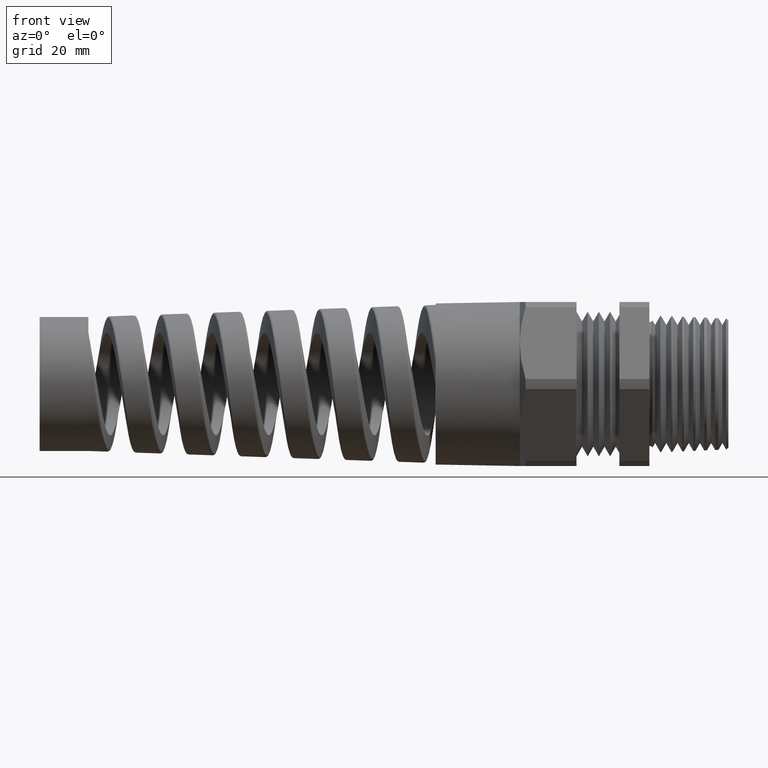
[diagram: clean part render]
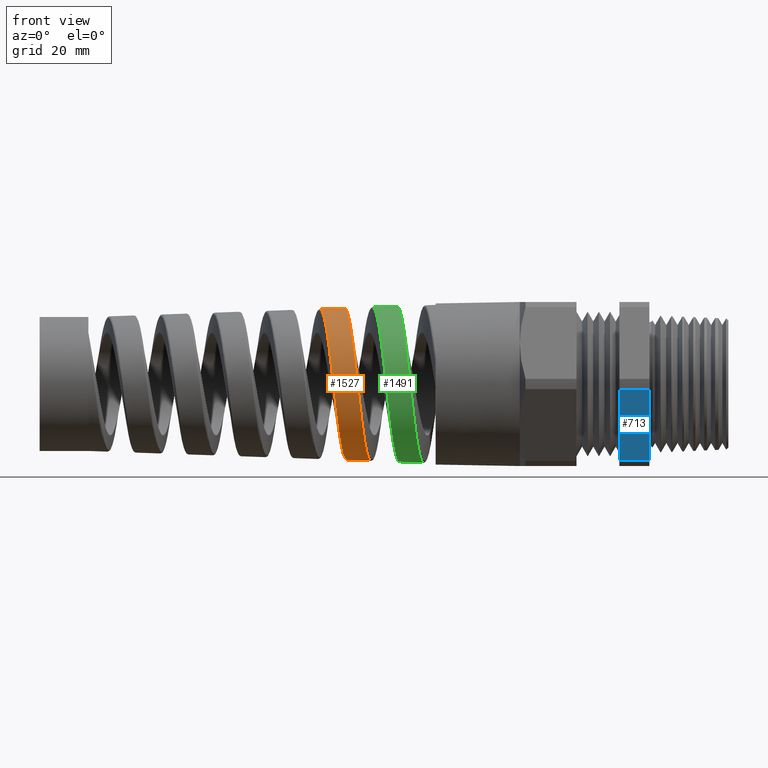
[diagram: same view with three faces highlighted in distinct colors, each labeled with its STEP entity id]
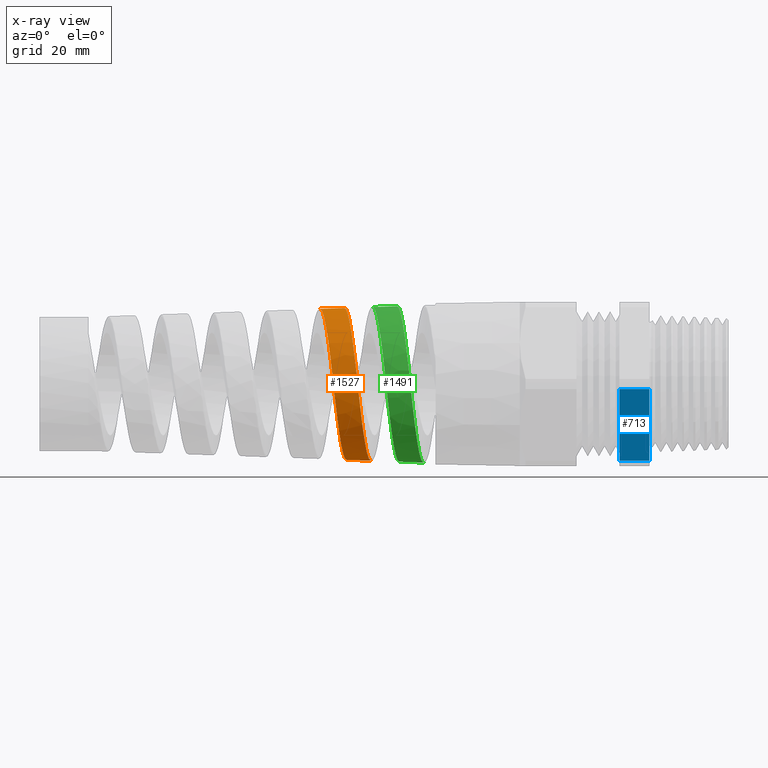
[diagram: x-ray of the same camera — body ghosted, the three highlighted faces saturated]
A machine part, front view with three faces highlighted in distinct colors.
The next image is the same camera in x-ray (body ghosted, the three faces saturated) — at least one of them is partly hidden behind the body in this view.
Their STEP definitions:

[orange] entity #1527 — the highlighted conical surface has half-angle 2.001 deg.
#1401 = VERTEX_POINT ( 'NONE', #11541 ) ;
#1403 = EDGE_CURVE ( 'NONE', #1401, #1404, #11540, .T. ) ;
#1404 = VERTEX_POINT ( 'NONE', #11536 ) ;
#1414 = VERTEX_POINT ( 'NONE', #11643 ) ;
#1452 = ORIENTED_EDGE ( 'NONE', *, *, #1403, .F. ) ;
#1485 = VERTEX_POINT ( 'NONE', #12276 ) ;
#1487 = EDGE_CURVE ( 'NONE', #1414, #1485, #12272, .T. ) ;
#1504 = ORIENTED_EDGE ( 'NONE', *, *, #1505, .T. ) ;
#1505 = EDGE_CURVE ( 'NONE', #1485, #1404, #12507, .T. ) ;
#1515 = ORIENTED_EDGE ( 'NONE', *, *, #1516, .T. ) ;
#1516 = EDGE_CURVE ( 'NONE', #1401, #1414, #12549, .T. ) ;
#1517 = ORIENTED_EDGE ( 'NONE', *, *, #1487, .T. ) ;
#1527 = ADVANCED_FACE ( 'NONE', ( #12734 ), #12728, .T. ) ;
#1528 = EDGE_LOOP ( 'NONE', ( #1452, #1515, #1517, #1504 ) ) ;
#11504 = CARTESIAN_POINT ( 'NONE',  ( -1.940054298517324400, -0.2610187680501633300, 0.4167585075105028600 ) ) ;
#11505 = CARTESIAN_POINT ( 'NONE',  ( -1.934723923338487400, -0.3012374277587881500, 0.3899189831598957600 ) ) ;
#11536 = CARTESIAN_POINT ( 'NONE',  ( -1.970366258008418700, 8.080882164397781500E-016, 0.4904273631850823400 ) ) ;
#11537 = DIRECTION ( 'NONE',  ( 0.9993904554178625300, 4.275258673359080400E-018, 0.03491013634572581700 ) ) ;
#11538 = VECTOR ( 'NONE', #11537, 39.37007874015748900 ) ;
#11539 = CARTESIAN_POINT ( 'NONE',  ( -0.8375000000000000200, 6.490628035480970000E-017, 0.5299999999999999200 ) ) ;
#11540 = LINE ( 'NONE', #11539, #11538 ) ;
#11541 = CARTESIAN_POINT ( 'NONE',  ( -2.126950025625508700, -3.921588020237294600E-013, 0.4849576684852720500 ) ) ;
#11643 = CARTESIAN_POINT ( 'NONE',  ( -1.956788165852292800, -5.262962614392048300E-013, -0.4909016653418775100 ) ) ;
#11781 = CARTESIAN_POINT ( 'NONE',  ( -1.945433043135629700, -0.2183509814821300000, 0.4404113744093495800 ) ) ;
#11783 = CARTESIAN_POINT ( 'NONE',  ( -1.941841036560495400, -0.2471005468463371200, 0.4250928787544007200 ) ) ;
#12099 = CARTESIAN_POINT ( 'NONE',  ( -1.947214422635189300, -0.2037130113122384800, 0.4472955279784776000 ) ) ;
#12100 = CARTESIAN_POINT ( 'NONE',  ( -1.956072637860206000, -0.1282473224093732300, 0.4749869207646405000 ) ) ;
#12101 = CARTESIAN_POINT ( 'NONE',  ( -1.952542110073305100, -0.1590381033086332200, 0.4656978719391909900 ) ) ;
#12269 = DIRECTION ( 'NONE',  ( 0.9993904554178625300, 0.0000000000000000000, -0.03491013634572581700 ) ) ;
#12270 = VECTOR ( 'NONE', #12269, 39.37007874015748900 ) ;
#12271 = CARTESIAN_POINT ( 'NONE',  ( -0.8375000000000000200, 0.0000000000000000000, -0.5299999999999999200 ) ) ;
#12272 = LINE ( 'NONE', #12271, #12270 ) ;
#12276 = CARTESIAN_POINT ( 'NONE',  ( -1.800173675453590900, 6.137882019710237000E-013, -0.4963724332323403200 ) ) ;
#12468 = CARTESIAN_POINT ( 'NONE',  ( -1.931200679576893200, -0.3261104193664271500, 0.3695442091682354900 ) ) ;
#12469 = CARTESIAN_POINT ( 'NONE',  ( -1.925853496053912700, -0.3604655451319386300, 0.3352210730112128400 ) ) ;
#12470 = CARTESIAN_POINT ( 'NONE',  ( -1.924053208243475100, -0.3714589966061807000, 0.3230922515468117600 ) ) ;
#12471 = CARTESIAN_POINT ( 'NONE',  ( -1.920488813662305100, -0.3919852260485274800, 0.2980612616859317800 ) ) ;
#12472 = CARTESIAN_POINT ( 'NONE',  ( -1.918716970074207700, -0.4015724787654469400, 0.2851137399971464000 ) ) ;
#12473 = CARTESIAN_POINT ( 'NONE',  ( -1.913409351693949200, -0.4283470321128043400, 0.2450038610062303700 ) ) ;
#12474 = CARTESIAN_POINT ( 'NONE',  ( -1.909875883052076800, -0.4435903396731858400, 0.2165285349090029200 ) ) ;
#12475 = CARTESIAN_POINT ( 'NONE',  ( -1.902712808441038100, -0.4684729604013435600, 0.1563221905293880300 ) ) ;
#12476 = CARTESIAN_POINT ( 'NONE',  ( -1.899187183762067500, -0.4777584589739025700, 0.1254794506144623100 ) ) ;
#12477 = CARTESIAN_POINT ( 'NONE',  ( -1.893887077975340500, -0.4871307740112840200, 0.07815812640470550000 ) ) ;
#12478 = CARTESIAN_POINT ( 'NONE',  ( -1.892118438561205800, -0.4894900148319970000, 0.06220686079470632400 ) ) ;
#12479 = CARTESIAN_POINT ( 'NONE',  ( -1.888558796980645200, -0.4926421087399239800, 0.02994292609547794700 ) ) ;
#12480 = CARTESIAN_POINT ( 'NONE',  ( -1.886764590473166000, -0.4934250982414232200, 0.01360086239810189500 ) ) ;
#12481 = CARTESIAN_POINT ( 'NONE',  ( -1.881439020610531400, -0.4933588805048748600, -0.03490017396999185700 ) ) ;
#12482 = CARTESIAN_POINT ( 'NONE',  ( -1.877925708963811900, -0.4901667864271757000, -0.06688825815702130500 ) ) ;
#12483 = CARTESIAN_POINT ( 'NONE',  ( -1.872617532382718800, -0.4806924271754249900, -0.1143450357671499500 ) ) ;
#12484 = CARTESIAN_POINT ( 'NONE',  ( -1.870834285321333100, -0.4767283659144366800, -0.1301377758347455900 ) ) ;
#12485 = CARTESIAN_POINT ( 'NONE',  ( -1.867268016615492900, -0.4672543620355411600, -0.1612520025533861800 ) ) ;
#12486 = CARTESIAN_POINT ( 'NONE',  ( -1.865498338997512400, -0.4617868659829511600, -0.1764580930467768400 ) ) ;
#12487 = CARTESIAN_POINT ( 'NONE',  ( -1.860203312988075100, -0.4432609539110020100, -0.2210529290605159100 ) ) ;
#12488 = CARTESIAN_POINT ( 'NONE',  ( -1.856693290412234900, -0.4280987754263969600, -0.2494278925930632200 ) ) ;
#12489 = CARTESIAN_POINT ( 'NONE',  ( -1.851361710774907900, -0.4010424532535899500, -0.2898999392763021400 ) ) ;
#12490 = CARTESIAN_POINT ( 'NONE',  ( -1.849574605628612600, -0.3912997723980710100, -0.3030195600465659900 ) ) ;
#12491 = CARTESIAN_POINT ( 'NONE',  ( -1.846037230146012200, -0.3707917274295744500, -0.3279818873375984800 ) ) ;
#12492 = CARTESIAN_POINT ( 'NONE',  ( -1.842516972819853800, -0.3491644079285869400, -0.3518199597440300200 ) ) ;
#12493 = CARTESIAN_POINT ( 'NONE',  ( -1.838998051377101400, -0.3253353841857014600, -0.3734414838601858300 ) ) ;
#12494 = CARTESIAN_POINT ( 'NONE',  ( -1.835465255661320700, -0.3003924756919560400, -0.3939393422871889600 ) ) ;
#12495 = CARTESIAN_POINT ( 'NONE',  ( -1.833682800327464800, -0.2872947871709060600, -0.4036712781793303000 ) ) ;
#12496 = CARTESIAN_POINT ( 'NONE',  ( -1.828353894754960000, -0.2467897723313266500, -0.4307662769087330400 ) ) ;
#12497 = CARTESIAN_POINT ( 'NONE',  ( -1.824851823162927400, -0.2184098489689820200, -0.4459409094174426300 ) ) ;
#12498 = CARTESIAN_POINT ( 'NONE',  ( -1.819573965572466100, -0.1738440689669233900, -0.4644894301305174100 ) ) ;
#12499 = CARTESIAN_POINT ( 'NONE',  ( -1.817811041559818300, -0.1586537522106682100, -0.4699650822437751500 ) ) ;
#12500 = CARTESIAN_POINT ( 'NONE',  ( -1.814262022284431000, -0.1275855792300714400, -0.4794612049791495100 ) ) ;
#12501 = CARTESIAN_POINT ( 'NONE',  ( -1.812482194494238900, -0.1117633914918472200, -0.4834547357609675900 ) ) ;
#12502 = CARTESIAN_POINT ( 'NONE',  ( -1.807194066610746000, -0.06428481680161855800, -0.4930030836152519100 ) ) ;
#12503 = CARTESIAN_POINT ( 'NONE',  ( -1.803700274733210500, -0.03230350512032042300, -0.4962492440814123000 ) ) ;
#12504 = CARTESIAN_POINT ( 'NONE',  ( -1.800173675453590900, 6.137882019710237000E-013, -0.4963724332323403200 ) ) ;
#12507 = B_SPLINE_CURVE_WITH_KNOTS ( 'NONE', 3,
 ( #12504, #12503, #12502, #12501, #12500, #12499, #12498, #12497, #12496, #12495, #12494, #12493, #12492, #12491, #12490, #12489, #12488, #12487, #12486, #12485, #12484, #12483, #12482, #12481, #12480, #12479, #12478, #12477, #12476, #12475, #12474, #12473, #12472, #12471, #12470, #12469, #12468, #11505, #11504, #11783, #11781, #12099, #12101, #12100, #12547, #12546, #12545, #12544, #12543 ),
 .UNSPECIFIED., .F., .F.,
 ( 4, 2, 2, 2, 2, 2, 1, 2, 2, 2, 2, 2, 2, 2, 2, 2, 2, 2, 2, 2, 2, 2, 2, 2, 4 ),
 ( 0.09989892382286455500, 0.1023843115514495000, 0.1036270054157419900, 0.1048696992800344600, 0.1073550870086194100, 0.1085977808729118900, 0.1098404747372043700, 0.1110831686014968500, 0.1123258624657893200, 0.1148112501943742800, 0.1160539440586667700, 0.1172966379229592600, 0.1197820256515442200, 0.1210247195158367100, 0.1222674133801292000, 0.1247528011087141600, 0.1272381888372991200, 0.1284808827015916100, 0.1297235765658841000, 0.1322089642944690700, 0.1334516581587615300, 0.1346943520230540200, 0.1371797397516390000, 0.1384224336159314800, 0.1396651274802239700 ),
 .UNSPECIFIED. ) ;
#12543 = CARTESIAN_POINT ( 'NONE',  ( -1.970366258008418700, 8.080882164397781500E-016, 0.4904273631850823400 ) ) ;
#12544 = CARTESIAN_POINT ( 'NONE',  ( -1.968591402298518500, -0.01607210514269810000, 0.4904893614306035700 ) ) ;
#12545 = CARTESIAN_POINT ( 'NONE',  ( -1.966815999828056800, -0.03215494722281127300, 0.4897632300345537400 ) ) ;
#12546 = CARTESIAN_POINT ( 'NONE',  ( -1.963246142005282700, -0.06434047833252107300, 0.4867079455546231000 ) ) ;
#12547 = CARTESIAN_POINT ( 'NONE',  ( -1.961441802277589500, -0.08053050806948074100, 0.4843577705735628800 ) ) ;
#12548 = CARTESIAN_POINT ( 'NONE',  ( -2.126950025625508700, -3.921588020237294600E-013, 0.4849576684852720500 ) ) ;
#12549 = B_SPLINE_CURVE_WITH_KNOTS ( 'NONE', 3,
 ( #12548, #12630, #12629, #12628, #12627, #12626, #12625, #12624, #12623, #12622, #12621, #12620, #12619, #12618, #12617, #12616, #12615, #12614, #12613, #12612, #12611, #12610, #12609, #12608, #12607, #12606, #12605, #12604, #12603, #12602, #12601, #12600, #12599, #12598, #12597, #12596, #12595, #12594, #12593, #12592, #12591, #12590, #12589, #12588, #12587, #12586, #12585, #12584, #12583, #12582, #12581 ),
 .UNSPECIFIED., .F., .F.,
 ( 4, 2, 1, 2, 2, 2, 2, 2, 2, 2, 2, 2, 2, 2, 2, 2, 2, 2, 2, 2, 2, 2, 2, 2, 2, 4 ),
 ( 0.3275861178558636700, 0.3288224891401667100, 0.3300588604244697500, 0.3312952317087727900, 0.3325316029930758300, 0.3350043455616819000, 0.3362407168459848900, 0.3374770881302879300, 0.3399498306988940100, 0.3411862019831970500, 0.3424225732675000900, 0.3448953158361061100, 0.3473680584047121900, 0.3486044296890151700, 0.3498408009733182100, 0.3523135435419242900, 0.3535499148262273300, 0.3547862861105303700, 0.3572590286791363900, 0.3584953999634394300, 0.3597317712477424700, 0.3609681425320455100, 0.3622045138163485500, 0.3646772563849545700, 0.3659136276692576100, 0.3671499989535606500 ),
 .UNSPECIFIED. ) ;
#12581 = CARTESIAN_POINT ( 'NONE',  ( -1.956788165852292800, -5.262962614392048300E-013, -0.4909016653418775100 ) ) ;
#12582 = CARTESIAN_POINT ( 'NONE',  ( -1.958549970791704700, -0.01597200320892930300, -0.4908401229783968500 ) ) ;
#12583 = CARTESIAN_POINT ( 'NONE',  ( -1.960330640259503800, -0.03210824303978018100, -0.4899891731778656700 ) ) ;
#12584 = CARTESIAN_POINT ( 'NONE',  ( -1.963872095786387800, -0.06402676025809769800, -0.4867232190556208800 ) ) ;
#12585 = CARTESIAN_POINT ( 'NONE',  ( -1.965631649058064500, -0.07979826607313203500, -0.4843205483670413000 ) ) ;
#12586 = CARTESIAN_POINT ( 'NONE',  ( -1.970901299676484300, -0.1265612665467569000, -0.4748626699852278000 ) ) ;
#12587 = CARTESIAN_POINT ( 'NONE',  ( -1.974399691985377500, -0.1570067553935506300, -0.4655787821038359600 ) ) ;
#12588 = CARTESIAN_POINT ( 'NONE',  ( -1.979728100323954600, -0.2015320063742346000, -0.4470365417443147900 ) ) ;
#12589 = CARTESIAN_POINT ( 'NONE',  ( -1.981505282616581300, -0.2160713906142163200, -0.4401193471711388200 ) ) ;
#12590 = CARTESIAN_POINT ( 'NONE',  ( -1.985031932804784500, -0.2441755374637757400, -0.4250287886003122400 ) ) ;
#12591 = CARTESIAN_POINT ( 'NONE',  ( -1.986788601180111900, -0.2578009156581732600, -0.4168307226002725400 ) ) ;
#12592 = CARTESIAN_POINT ( 'NONE',  ( -1.990304130164506100, -0.2842059600157567600, -0.3991438842310947000 ) ) ;
#12593 = CARTESIAN_POINT ( 'NONE',  ( -1.992062597996201400, -0.2969856817485153600, -0.3896551170492311100 ) ) ;
#12594 = CARTESIAN_POINT ( 'NONE',  ( -1.995597790085105600, -0.3216830965315139500, -0.3693652232811428500 ) ) ;
#12595 = CARTESIAN_POINT ( 'NONE',  ( -1.997384489215503000, -0.3336610457239669300, -0.3584988394057610500 ) ) ;
#12596 = CARTESIAN_POINT ( 'NONE',  ( -2.002705450344995700, -0.3676396835543386800, -0.3244704372248286600 ) ) ;
#12597 = CARTESIAN_POINT ( 'NONE',  ( -2.006210668027887500, -0.3877927868443491500, -0.2998716718794926500 ) ) ;
#12598 = CARTESIAN_POINT ( 'NONE',  ( -2.011501260278832700, -0.4143400914414440100, -0.2601680481853070300 ) ) ;
#12599 = CARTESIAN_POINT ( 'NONE',  ( -2.013269663306649800, -0.4225712473619820400, -0.2464626245114767100 ) ) ;
#12600 = CARTESIAN_POINT ( 'NONE',  ( -2.016835031948170700, -0.4377551245851459300, -0.2180801804087756100 ) ) ;
#12601 = CARTESIAN_POINT ( 'NONE',  ( -2.018612425540876800, -0.4446201324569933300, -0.2035579137616691000 ) ) ;
#12602 = CARTESIAN_POINT ( 'NONE',  ( -2.023912360765570900, -0.4629278212946190100, -0.1593802235089219800 ) ) ;
#12603 = CARTESIAN_POINT ( 'NONE',  ( -2.027421933446924600, -0.4721839018528426500, -0.1289719749676264400 ) ) ;
#12604 = CARTESIAN_POINT ( 'NONE',  ( -2.032744199961714000, -0.4815927678926397200, -0.08191915052385527500 ) ) ;
#12605 = CARTESIAN_POINT ( 'NONE',  ( -2.034536783194426300, -0.4839805469581845400, -0.06591373762534968900 ) ) ;
#12606 = CARTESIAN_POINT ( 'NONE',  ( -2.038089600107122500, -0.4871362242101702200, -0.03404309825426296600 ) ) ;
#12607 = CARTESIAN_POINT ( 'NONE',  ( -2.039855680528875700, -0.4879221804152137900, -0.01812746240460144300 ) ) ;
#12608 = CARTESIAN_POINT ( 'NONE',  ( -2.045149340681850600, -0.4879554035894949100, 0.02955878929029001300 ) ) ;
#12609 = CARTESIAN_POINT ( 'NONE',  ( -2.048671955086366100, -0.4849006174848128900, 0.06126938661619026100 ) ) ;
#12610 = CARTESIAN_POINT ( 'NONE',  ( -2.055832467752174000, -0.4723729331067531600, 0.1245088405540348400 ) ) ;
#12611 = CARTESIAN_POINT ( 'NONE',  ( -2.059354794702788400, -0.4631059904973919300, 0.1549939484450593400 ) ) ;
#12612 = CARTESIAN_POINT ( 'NONE',  ( -2.064657039043402700, -0.4448887606323893600, 0.1990623929924104400 ) ) ;
#12613 = CARTESIAN_POINT ( 'NONE',  ( -2.066427415518522700, -0.4380914416898794000, 0.2134741935416147300 ) ) ;
#12614 = CARTESIAN_POINT ( 'NONE',  ( -2.069989966308237500, -0.4230148746385710700, 0.2417282495275143200 ) ) ;
#12615 = CARTESIAN_POINT ( 'NONE',  ( -2.071787690230090500, -0.4146992365588065300, 0.2556109408640563400 ) ) ;
#12616 = CARTESIAN_POINT ( 'NONE',  ( -2.077125031798937400, -0.3880386385933733400, 0.2955070086039533500 ) ) ;
#12617 = CARTESIAN_POINT ( 'NONE',  ( -2.080644878502583100, -0.3678667675306717700, 0.3200716736662613800 ) ) ;
#12618 = CARTESIAN_POINT ( 'NONE',  ( -2.085971031547044800, -0.3340525061643930800, 0.3538889815563738300 ) ) ;
#12619 = CARTESIAN_POINT ( 'NONE',  ( -2.087759190266214900, -0.3221477893696598200, 0.3646825169102292400 ) ) ;
#12620 = CARTESIAN_POINT ( 'NONE',  ( -2.091344031355276900, -0.2972577171819559800, 0.3850825916892136600 ) ) ;
#12621 = CARTESIAN_POINT ( 'NONE',  ( -2.093122110168117900, -0.2844054473061680100, 0.3945863425157292200 ) ) ;
#12622 = CARTESIAN_POINT ( 'NONE',  ( -2.098442076040774000, -0.2446677883695380600, 0.4210725038547201100 ) ) ;
#12623 = CARTESIAN_POINT ( 'NONE',  ( -2.101969849049802900, -0.2166126186123205100, 0.4360488002205149000 ) ) ;
#12624 = CARTESIAN_POINT ( 'NONE',  ( -2.107336092835759600, -0.1721410762171766700, 0.4543935791814077100 ) ) ;
#12625 = CARTESIAN_POINT ( 'NONE',  ( -2.109137396840409500, -0.1569091584957527400, 0.4598070599210675700 ) ) ;
#12626 = CARTESIAN_POINT ( 'NONE',  ( -2.112701141728703400, -0.1263128413939811300, 0.4690066113531106100 ) ) ;
#12627 = CARTESIAN_POINT ( 'NONE',  ( -2.116246771620323500, -0.09541879083074053500, 0.4766531090879574900 ) ) ;
#12628 = CARTESIAN_POINT ( 'NONE',  ( -2.119792727041759600, -0.06394240842949261400, 0.4812405755579579100 ) ) ;
#12629 = CARTESIAN_POINT ( 'NONE',  ( -2.123356215426745600, -0.03217294771435202900, 0.4842780657612144600 ) ) ;
#12630 = CARTESIAN_POINT ( 'NONE',  ( -2.125155777842725700, -0.01606057734700762400, 0.4850203441235900200 ) ) ;
#12723 = DIRECTION ( 'NONE',  ( 0.0000000000000000000, 0.0000000000000000000, -1.000000000000000000 ) ) ;
#12724 = DIRECTION ( 'NONE',  ( 1.000000000000000000, 0.0000000000000000000, 0.0000000000000000000 ) ) ;
#12725 = CARTESIAN_POINT ( 'NONE',  ( -0.8375000000000000200, 0.0000000000000000000, 0.0000000000000000000 ) ) ;
#12726 = AXIS2_PLACEMENT_3D ( 'NONE', #12725, #12724, #12723 ) ;
#12728 = CONICAL_SURFACE ( 'NONE', #12726, 0.5299999999999999200, 0.03491723117042447300 ) ;
#12734 = FACE_OUTER_BOUND ( 'NONE', #1528, .T. ) ;

[blue] entity #713 — the highlighted planar face has unit normal (0, -0.866, -0.5).
#226 = VERTEX_POINT ( 'NONE', #1826 ) ;
#250 = ORIENTED_EDGE ( 'NONE', *, *, #481, .T. ) ;
#252 = EDGE_LOOP ( 'NONE', ( #253, #250, #635, #636 ) ) ;
#253 = ORIENTED_EDGE ( 'NONE', *, *, #591, .T. ) ;
#344 = VERTEX_POINT ( 'NONE', #1884 ) ;
#481 = EDGE_CURVE ( 'NONE', #482, #226, #2446, .T. ) ;
#482 = VERTEX_POINT ( 'NONE', #2494 ) ;
#551 = EDGE_CURVE ( 'NONE', #552, #344, #2652, .T. ) ;
#552 = VERTEX_POINT ( 'NONE', #2648 ) ;
#591 = EDGE_CURVE ( 'NONE', #552, #482, #2721, .T. ) ;
#635 = ORIENTED_EDGE ( 'NONE', *, *, #1890, .F. ) ;
#636 = ORIENTED_EDGE ( 'NONE', *, *, #551, .F. ) ;
#713 = ADVANCED_FACE ( 'NONE', ( #2828 ), #2832, .T. ) ;
#1826 = CARTESIAN_POINT ( 'NONE',  ( 0.0000000000000000000, -0.3253325497488163700, -0.4965074944791205700 ) ) ;
#1884 = CARTESIAN_POINT ( 'NONE',  ( 0.0000000000000000000, -0.5926543782626886300, -0.03349250552087963000 ) ) ;
#1890 = EDGE_CURVE ( 'NONE', #344, #226, #12871, .T. ) ;
#2446 = LINE ( 'NONE', #2497, #2496 ) ;
#2494 = CARTESIAN_POINT ( 'NONE',  ( -0.1940298507462685800, -0.3253325497488163700, -0.4965074944791205700 ) ) ;
#2495 = DIRECTION ( 'NONE',  ( 1.000000000000000000, 0.0000000000000000000, 0.0000000000000000000 ) ) ;
#2496 = VECTOR ( 'NONE', #2495, 39.37007874015748100 ) ;
#2497 = CARTESIAN_POINT ( 'NONE',  ( -2.533243884661831900, -0.3253325497488163700, -0.4965074944791205700 ) ) ;
#2648 = CARTESIAN_POINT ( 'NONE',  ( -0.1940298507462687200, -0.5926543782626886300, -0.03349250552087960900 ) ) ;
#2649 = DIRECTION ( 'NONE',  ( 1.000000000000000000, 0.0000000000000000000, 0.0000000000000000000 ) ) ;
#2650 = VECTOR ( 'NONE', #2649, 39.37007874015748100 ) ;
#2651 = CARTESIAN_POINT ( 'NONE',  ( -2.533243884661831900, -0.5926543782626886300, -0.03349250552087959500 ) ) ;
#2652 = LINE ( 'NONE', #2651, #2650 ) ;
#2718 = DIRECTION ( 'NONE',  ( 0.0000000000000000000, 0.5000000000000003300, -0.8660254037844383700 ) ) ;
#2719 = VECTOR ( 'NONE', #2718, 39.37007874015748100 ) ;
#2720 = CARTESIAN_POINT ( 'NONE',  ( -0.1940298507462687200, -0.3423934640057522100, -0.4669571241625314300 ) ) ;
#2721 = LINE ( 'NONE', #2720, #2719 ) ;
#2824 = DIRECTION ( 'NONE',  ( 0.0000000000000000000, 0.5000000000000003300, -0.8660254037844383700 ) ) ;
#2825 = DIRECTION ( 'NONE',  ( 0.0000000000000000000, -0.8660254037844384900, -0.5000000000000004400 ) ) ;
#2826 = CARTESIAN_POINT ( 'NONE',  ( -2.533243884661831900, -0.5926543782626886300, -0.03349250552087959500 ) ) ;
#2827 = AXIS2_PLACEMENT_3D ( 'NONE', #2826, #2825, #2824 ) ;
#2828 = FACE_OUTER_BOUND ( 'NONE', #252, .T. ) ;
#2832 = PLANE ( 'NONE',  #2827 ) ;
#12868 = DIRECTION ( 'NONE',  ( 0.0000000000000000000, 0.5000000000000003300, -0.8660254037844383700 ) ) ;
#12869 = VECTOR ( 'NONE', #12868, 39.37007874015748100 ) ;
#12870 = CARTESIAN_POINT ( 'NONE',  ( 0.0000000000000000000, -0.5926543782626886300, -0.03349250552087959500 ) ) ;
#12871 = LINE ( 'NONE', #12870, #12869 ) ;

[green] entity #1491 — the highlighted conical surface has half-angle 2.001 deg.
#1287 = VERTEX_POINT ( 'NONE', #10587 ) ;
#1415 = VERTEX_POINT ( 'NONE', #11641 ) ;
#1417 = VERTEX_POINT ( 'NONE', #11672 ) ;
#1448 = VERTEX_POINT ( 'NONE', #11906 ) ;
#1450 = EDGE_CURVE ( 'NONE', #1287, #1448, #11908, .T. ) ;
#1469 = EDGE_CURVE ( 'NONE', #1415, #1417, #12105, .T. ) ;
#1491 = ADVANCED_FACE ( 'NONE', ( #12345 ), #12374, .T. ) ;
#1492 = ORIENTED_EDGE ( 'NONE', *, *, #1469, .F. ) ;
#1506 = EDGE_LOOP ( 'NONE', ( #1492, #1518, #1520, #1521 ) ) ;
#1507 = EDGE_CURVE ( 'NONE', #1448, #1417, #12541, .T. ) ;
#1518 = ORIENTED_EDGE ( 'NONE', *, *, #1519, .T. ) ;
#1519 = EDGE_CURVE ( 'NONE', #1415, #1287, #12672, .T. ) ;
#1520 = ORIENTED_EDGE ( 'NONE', *, *, #1450, .T. ) ;
#1521 = ORIENTED_EDGE ( 'NONE', *, *, #1507, .T. ) ;
#10587 = CARTESIAN_POINT ( 'NONE',  ( -1.616464831785917400, 8.726580588665722600E-016, -0.5027896455897192800 ) ) ;
#11641 = CARTESIAN_POINT ( 'NONE',  ( -1.786625542319136000, -3.133781198547623400E-016, 0.4968456888777088000 ) ) ;
#11672 = CARTESIAN_POINT ( 'NONE',  ( -1.629983377123320800, 4.756473927718007700E-013, 0.5023174234883711600 ) ) ;
#11906 = CARTESIAN_POINT ( 'NONE',  ( -1.459790112508176900, -5.226846586167458000E-013, -0.5082625173609703900 ) ) ;
#11908 = LINE ( 'NONE', #11973, #11972 ) ;
#11971 = DIRECTION ( 'NONE',  ( 0.9993904554178625300, 0.0000000000000000000, -0.03491013634572581700 ) ) ;
#11972 = VECTOR ( 'NONE', #11971, 39.37007874015748900 ) ;
#11973 = CARTESIAN_POINT ( 'NONE',  ( -0.8375000000000000200, 0.0000000000000000000, -0.5299999999999999200 ) ) ;
#12102 = DIRECTION ( 'NONE',  ( 0.9993904554178625300, 4.275258673359080400E-018, 0.03491013634572581700 ) ) ;
#12103 = VECTOR ( 'NONE', #12102, 39.37007874015748900 ) ;
#12104 = CARTESIAN_POINT ( 'NONE',  ( -0.8375000000000000200, 6.490628035480970000E-017, 0.5299999999999999200 ) ) ;
#12105 = LINE ( 'NONE', #12104, #12103 ) ;
#12345 = FACE_OUTER_BOUND ( 'NONE', #1506, .T. ) ;
#12370 = DIRECTION ( 'NONE',  ( 0.0000000000000000000, 0.0000000000000000000, -1.000000000000000000 ) ) ;
#12371 = DIRECTION ( 'NONE',  ( 1.000000000000000000, 0.0000000000000000000, 0.0000000000000000000 ) ) ;
#12372 = CARTESIAN_POINT ( 'NONE',  ( -0.8375000000000000200, 0.0000000000000000000, 0.0000000000000000000 ) ) ;
#12373 = AXIS2_PLACEMENT_3D ( 'NONE', #12372, #12371, #12370 ) ;
#12374 = CONICAL_SURFACE ( 'NONE', #12373, 0.5299999999999999200, 0.03491723117042447300 ) ;
#12511 = CARTESIAN_POINT ( 'NONE',  ( -1.567708901126263000, -0.4606322799767241800, 0.2064019313994715200 ) ) ;
#12512 = CARTESIAN_POINT ( 'NONE',  ( -1.564173355750488000, -0.4732206181072423600, 0.1759850217213420900 ) ) ;
#12513 = CARTESIAN_POINT ( 'NONE',  ( -1.562404271421519400, -0.4787776155989041400, 0.1604567213018472100 ) ) ;
#12514 = CARTESIAN_POINT ( 'NONE',  ( -1.558848449041910800, -0.4883884425742922000, 0.1287496845661417200 ) ) ;
#12515 = CARTESIAN_POINT ( 'NONE',  ( -1.557052694446338800, -0.4924528970912066000, 0.1124893811603887700 ) ) ;
#12516 = CARTESIAN_POINT ( 'NONE',  ( -1.551716080888328100, -0.5021171856104356100, 0.06368256504369991500 ) ) ;
#12517 = CARTESIAN_POINT ( 'NONE',  ( -1.548201291970001000, -0.5053061294215762700, 0.03090995228590714300 ) ) ;
#12518 = CARTESIAN_POINT ( 'NONE',  ( -1.541123864868101800, -0.5052808568633564400, -0.03508289329762472700 ) ) ;
#12519 = CARTESIAN_POINT ( 'NONE',  ( -1.537534952262287400, -0.5019596590951875800, -0.06857715255371578400 ) ) ;
#12520 = CARTESIAN_POINT ( 'NONE',  ( -1.530466483893175200, -0.4890289889440351300, -0.1332917288377950300 ) ) ;
#12521 = CARTESIAN_POINT ( 'NONE',  ( -1.526955927333741400, -0.4794705610103433000, -0.1648011137429566100 ) ) ;
#12522 = CARTESIAN_POINT ( 'NONE',  ( -1.521628470664832900, -0.4604270784430438700, -0.2107642901055334600 ) ) ;
#12523 = CARTESIAN_POINT ( 'NONE',  ( -1.519836923679471800, -0.4532555826056481900, -0.2259133614740603000 ) ) ;
#12524 = CARTESIAN_POINT ( 'NONE',  ( -1.516292088167939400, -0.4376217633088396700, -0.2551274791382942000 ) ) ;
#12525 = CARTESIAN_POINT ( 'NONE',  ( -1.514530064877201100, -0.4291335540274456900, -0.2692694159676858300 ) ) ;
#12526 = CARTESIAN_POINT ( 'NONE',  ( -1.509248314849859700, -0.4016960900215203500, -0.3103248787266714200 ) ) ;
#12527 = CARTESIAN_POINT ( 'NONE',  ( -1.505723312518911800, -0.3807313478101082000, -0.3359429265302075800 ) ) ;
#12528 = CARTESIAN_POINT ( 'NONE',  ( -1.498594581896006300, -0.3335991406605805000, -0.3831161926950688000 ) ) ;
#12529 = CARTESIAN_POINT ( 'NONE',  ( -1.495089609255333200, -0.3080976878801444700, -0.4040288281644825500 ) ) ;
#12530 = CARTESIAN_POINT ( 'NONE',  ( -1.489812742182676100, -0.2670587759457964700, -0.4315281978196483000 ) ) ;
#12531 = CARTESIAN_POINT ( 'NONE',  ( -1.488050796294394100, -0.2529113117433829400, -0.4400450914923718100 ) ) ;
#12532 = CARTESIAN_POINT ( 'NONE',  ( -1.484504578480162000, -0.2236596941075795800, -0.4557475700875141500 ) ) ;
#12533 = CARTESIAN_POINT ( 'NONE',  ( -1.482717763606309400, -0.2085277730113529200, -0.4629335724768111100 ) ) ;
#12534 = CARTESIAN_POINT ( 'NONE',  ( -1.477417556208761500, -0.1626777627259142800, -0.4820137886722578000 ) ) ;
#12535 = CARTESIAN_POINT ( 'NONE',  ( -1.473923651534398500, -0.1311974473398549700, -0.4916378117036269100 ) ) ;
#12536 = CARTESIAN_POINT ( 'NONE',  ( -1.468637505802179200, -0.08262716389116379900, -0.5014601777976409600 ) ) ;
#12537 = CARTESIAN_POINT ( 'NONE',  ( -1.466861167679352600, -0.06614615329705710000, -0.5039660709776243600 ) ) ;
#12538 = CARTESIAN_POINT ( 'NONE',  ( -1.463308658876206800, -0.03300952765179631500, -0.5073397129556083100 ) ) ;
#12539 = CARTESIAN_POINT ( 'NONE',  ( -1.461546619683924600, -0.01648372007032520400, -0.5082011600559429600 ) ) ;
#12540 = CARTESIAN_POINT ( 'NONE',  ( -1.459790112508176900, -5.226846586167458000E-013, -0.5082625173609703900 ) ) ;
#12541 = B_SPLINE_CURVE_WITH_KNOTS ( 'NONE', 3,
 ( #12540, #12539, #12538, #12537, #12536, #12535, #12534, #12533, #12532, #12531, #12530, #12529, #12528, #12527, #12526, #12525, #12524, #12523, #12522, #12521, #12520, #12519, #12518, #12517, #12516, #12515, #12514, #12513, #12512, #12511, #12580, #12579, #12578, #12577, #12576, #12575, #12574, #12573, #12572, #12571, #12570, #12568, #12567, #12566, #12565, #12564, #12563, #12562 ),
 .UNSPECIFIED., .F., .F.,
 ( 4, 2, 2, 2, 2, 2, 2, 2, 2, 2, 2, 2, 2, 2, 2, 2, 2, 2, 2, 2, 2, 2, 2, 4 ),
 ( 0.01894638822323322900, 0.02021882069662101600, 0.02149125317000880700, 0.02403611811678438600, 0.02530855059017217800, 0.02658098306355996900, 0.02912584801033554800, 0.03167071295711113000, 0.03294314543049891400, 0.03421557790388670600, 0.03676044285066228100, 0.03930530779743787000, 0.04185017274421344600, 0.04312260521760124400, 0.04439503769098902800, 0.04566747016437681900, 0.04693990263776461100, 0.04948476758454018600, 0.05075720005792797000, 0.05202963253131576100, 0.05457449747809131600, 0.05584692995147910700, 0.05711936242486689900, 0.05966422737164246700 ),
 .UNSPECIFIED. ) ;
#12562 = CARTESIAN_POINT ( 'NONE',  ( -1.629983377123320800, 4.756473927718007700E-013, 0.5023174234883711600 ) ) ;
#12563 = CARTESIAN_POINT ( 'NONE',  ( -1.626395003575287900, -0.03327371400057622900, 0.5024427705028177100 ) ) ;
#12564 = CARTESIAN_POINT ( 'NONE',  ( -1.622857317837774500, -0.06607670754126339400, 0.4992921849117175600 ) ) ;
#12565 = CARTESIAN_POINT ( 'NONE',  ( -1.617531004056695000, -0.1145857203544291300, 0.4897974705067398800 ) ) ;
#12566 = CARTESIAN_POINT ( 'NONE',  ( -1.615752199294402800, -0.1306386373508588700, 0.4858320270201910200 ) ) ;
#12567 = CARTESIAN_POINT ( 'NONE',  ( -1.612168876767923600, -0.1625022285918175400, 0.4762542688393603400 ) ) ;
#12568 = CARTESIAN_POINT ( 'NONE',  ( -1.610372275321985800, -0.1782387633678851100, 0.4706543768198968600 ) ) ;
#12570 = CARTESIAN_POINT ( 'NONE',  ( -1.605032703340770100, -0.2240742577350847400, 0.4517547466992300500 ) ) ;
#12571 = CARTESIAN_POINT ( 'NONE',  ( -1.601504555844065500, -0.2531285324855685500, 0.4362845510286579300 ) ) ;
#12572 = CARTESIAN_POINT ( 'NONE',  ( -1.596164419616223700, -0.2944402751190312000, 0.4087660694620745500 ) ) ;
#12573 = CARTESIAN_POINT ( 'NONE',  ( -1.594365874921797500, -0.3079004140325691300, 0.3988075059890470700 ) ) ;
#12574 = CARTESIAN_POINT ( 'NONE',  ( -1.590793643611610400, -0.3335878218144725000, 0.3777498438110113400 ) ) ;
#12575 = CARTESIAN_POINT ( 'NONE',  ( -1.589019352887297600, -0.3458265331183039700, 0.3666573524670824800 ) ) ;
#12576 = CARTESIAN_POINT ( 'NONE',  ( -1.583705788263610100, -0.3807716633222146300, 0.3317335988507473800 ) ) ;
#12577 = CARTESIAN_POINT ( 'NONE',  ( -1.580177557247300000, -0.4017241995214022600, 0.3062717031175410900 ) ) ;
#12578 = CARTESIAN_POINT ( 'NONE',  ( -1.574806927677148400, -0.4295041274226023000, 0.2647013271758048000 ) ) ;
#12579 = CARTESIAN_POINT ( 'NONE',  ( -1.573021734801782800, -0.4380502433934768700, 0.2504202427135717700 ) ) ;
#12580 = CARTESIAN_POINT ( 'NONE',  ( -1.569475291791995900, -0.4536009023281384300, 0.2212905328707623100 ) ) ;
#12631 = CARTESIAN_POINT ( 'NONE',  ( -1.651767861359048300, -0.3048802835663836400, -0.3996214769366331900 ) ) ;
#12632 = CARTESIAN_POINT ( 'NONE',  ( -1.655280527208367500, -0.3300958056967984700, -0.3788581730598285500 ) ) ;
#12633 = CARTESIAN_POINT ( 'NONE',  ( -1.660558157090380700, -0.3646451190176123700, -0.3443111043770100100 ) ) ;
#12634 = CARTESIAN_POINT ( 'NONE',  ( -1.662319556038156300, -0.3756153793329608000, -0.3322219294533431100 ) ) ;
#12635 = CARTESIAN_POINT ( 'NONE',  ( -1.665864715003762700, -0.3964382264588287000, -0.3068728398945960700 ) ) ;
#12636 = CARTESIAN_POINT ( 'NONE',  ( -1.667655306724823000, -0.4063200312975207600, -0.2935562723356635000 ) ) ;
#12637 = CARTESIAN_POINT ( 'NONE',  ( -1.672974372863249800, -0.4336488299727875900, -0.2526659594101136100 ) ) ;
#12638 = CARTESIAN_POINT ( 'NONE',  ( -1.676481287868383900, -0.4490089482778349400, -0.2239446882446941300 ) ) ;
#12639 = CARTESIAN_POINT ( 'NONE',  ( -1.681780588808233300, -0.4678029535924302400, -0.1787047173555084400 ) ) ;
#12640 = CARTESIAN_POINT ( 'NONE',  ( -1.683557314487376600, -0.4733641253206440900, -0.1632323268199890900 ) ) ;
#12641 = CARTESIAN_POINT ( 'NONE',  ( -1.687128788966692200, -0.4829677946750409200, -0.1316648948638171300 ) ) ;
#12642 = CARTESIAN_POINT ( 'NONE',  ( -1.688900988319616200, -0.4869524089171692900, -0.1157710876967786200 ) ) ;
#12643 = CARTESIAN_POINT ( 'NONE',  ( -1.694202638015966700, -0.4965337164661143800, -0.06777272592312177900 ) ) ;
#12644 = CARTESIAN_POINT ( 'NONE',  ( -1.697714680222998800, -0.4997799659255495200, -0.03535389682225439900 ) ) ;
#12645 = CARTESIAN_POINT ( 'NONE',  ( -1.703051326595910200, -0.4998413243432799900, 0.01390578043597209300 ) ) ;
#12646 = CARTESIAN_POINT ( 'NONE',  ( -1.704845279942342100, -0.4990419366077595300, 0.03046070985829077400 ) ) ;
#12647 = CARTESIAN_POINT ( 'NONE',  ( -1.708396460496506300, -0.4958528849278229200, 0.06306082191482441400 ) ) ;
#12648 = CARTESIAN_POINT ( 'NONE',  ( -1.710163384148552000, -0.4934673031060498000, 0.07919582522046109100 ) ) ;
#12649 = CARTESIAN_POINT ( 'NONE',  ( -1.713695921786717800, -0.4871413239131790500, 0.1111396708569392100 ) ) ;
#12650 = CARTESIAN_POINT ( 'NONE',  ( -1.715461182218122000, -0.4832009073786031600, 0.1269485485334238300 ) ) ;
#12651 = CARTESIAN_POINT ( 'NONE',  ( -1.719006141189681500, -0.4737479922655552000, 0.1582347657420550000 ) ) ;
#12652 = CARTESIAN_POINT ( 'NONE',  ( -1.720793337759686700, -0.4682093629354506800, 0.1737739455512965200 ) ) ;
#12653 = CARTESIAN_POINT ( 'NONE',  ( -1.726155610706329800, -0.4493216551494965700, 0.2194414805486542800 ) ) ;
#12654 = CARTESIAN_POINT ( 'NONE',  ( -1.729680341482067400, -0.4339332374248398600, 0.2481941808425160700 ) ) ;
#12655 = CARTESIAN_POINT ( 'NONE',  ( -1.734991002322232600, -0.4067918462765660000, 0.2888548437240816000 ) ) ;
#12656 = CARTESIAN_POINT ( 'NONE',  ( -1.736764454115922600, -0.3970633601468896400, 0.3019941156204280500 ) ) ;
#12657 = CARTESIAN_POINT ( 'NONE',  ( -1.740336413146721200, -0.3762071337153220000, 0.3274195241998779600 ) ) ;
#12658 = CARTESIAN_POINT ( 'NONE',  ( -1.742132062977273400, -0.3650884097585673200, 0.3396771577563156800 ) ) ;
#12659 = CARTESIAN_POINT ( 'NONE',  ( -1.747466057330682200, -0.3303636966115584600, 0.3743623896432428100 ) ) ;
#12660 = CARTESIAN_POINT ( 'NONE',  ( -1.750991672359782700, -0.3051797036457858900, 0.3950059668119620900 ) ) ;
#12661 = CARTESIAN_POINT ( 'NONE',  ( -1.756329369919772200, -0.2643596451584606100, 0.4222439114867543300 ) ) ;
#12662 = CARTESIAN_POINT ( 'NONE',  ( -1.758126507435987800, -0.2501619802875535400, 0.4307380865366857200 ) ) ;
#12663 = CARTESIAN_POINT ( 'NONE',  ( -1.761704465393228100, -0.2211307935698406700, 0.4461984533532878900 ) ) ;
#12664 = CARTESIAN_POINT ( 'NONE',  ( -1.763481398132309000, -0.2063347690241283100, 0.4531569071637817600 ) ) ;
#12665 = CARTESIAN_POINT ( 'NONE',  ( -1.768803260838059500, -0.1611303831343416400, 0.4717774199890442700 ) ) ;
#12666 = CARTESIAN_POINT ( 'NONE',  ( -1.772339077173524800, -0.1299135189113290200, 0.4812062865543202900 ) ) ;
#12667 = CARTESIAN_POINT ( 'NONE',  ( -1.777721085123071400, -0.08142351593848105900, 0.4907202218865458500 ) ) ;
#12668 = CARTESIAN_POINT ( 'NONE',  ( -1.779515896321803000, -0.06509464419952548700, 0.4930843890579743600 ) ) ;
#12669 = CARTESIAN_POINT ( 'NONE',  ( -1.783076755013493400, -0.03255755248063713100, 0.4961712262156371400 ) ) ;
#12670 = CARTESIAN_POINT ( 'NONE',  ( -1.784850274576398800, -0.01628184787799968900, 0.4969077015161254600 ) ) ;
#12671 = CARTESIAN_POINT ( 'NONE',  ( -1.786625542319136000, -3.133781198547623400E-016, 0.4968456888777088000 ) ) ;
#12672 = B_SPLINE_CURVE_WITH_KNOTS ( 'NONE', 3,
 ( #12671, #12670, #12669, #12668, #12667, #12666, #12665, #12664, #12663, #12662, #12661, #12660, #12659, #12658, #12657, #12656, #12655, #12654, #12653, #12652, #12651, #12650, #12649, #12648, #12647, #12646, #12645, #12644, #12643, #12642, #12641, #12640, #12639, #12638, #12637, #12636, #12635, #12634, #12633, #12632, #12631, #12714, #12713, #12712, #12711, #12710, #12709, #12708, #12707, #12706 ),
 .UNSPECIFIED., .F., .F.,
 ( 4, 2, 2, 2, 2, 2, 2, 2, 2, 2, 2, 2, 2, 2, 2, 2, 2, 2, 2, 2, 2, 2, 2, 2, 4 ),
 ( 0.4072038867448174400, 0.4084706381816743400, 0.4097373896185312300, 0.4122708924922450800, 0.4135376439291019700, 0.4148043953659588700, 0.4173378982396727100, 0.4186046496765296100, 0.4198714011133865000, 0.4224049039871003400, 0.4236716554239572400, 0.4249384068608141300, 0.4262051582976710800, 0.4274719097345279800, 0.4300054126082417700, 0.4312721640450987200, 0.4325389154819556100, 0.4350724183556694000, 0.4363391697925262900, 0.4376059212293832400, 0.4401394241030970300, 0.4426729269768108200, 0.4439396784136677700, 0.4452064298505246700, 0.4477399327242384500 ),
 .UNSPECIFIED. ) ;
#12706 = CARTESIAN_POINT ( 'NONE',  ( -1.616464831785917400, 8.726580588665722600E-016, -0.5027896455897192800 ) ) ;
#12707 = CARTESIAN_POINT ( 'NONE',  ( -1.619983570681667000, -0.03266326502096370700, -0.5026667310131895900 ) ) ;
#12708 = CARTESIAN_POINT ( 'NONE',  ( -1.623474803873619100, -0.06506800308885386800, -0.4993914920054966500 ) ) ;
#12709 = CARTESIAN_POINT ( 'NONE',  ( -1.628775580798075300, -0.1132715004647413400, -0.4896972146551416500 ) ) ;
#12710 = CARTESIAN_POINT ( 'NONE',  ( -1.630561806597631300, -0.1293471836349066300, -0.4856346533362181400 ) ) ;
#12711 = CARTESIAN_POINT ( 'NONE',  ( -1.634101967599971300, -0.1607288831239609700, -0.4760396210558139300 ) ) ;
#12712 = CARTESIAN_POINT ( 'NONE',  ( -1.635861520469355600, -0.1760899017528672100, -0.4705041705543151500 ) ) ;
#12713 = CARTESIAN_POINT ( 'NONE',  ( -1.641132259752805700, -0.2212024218839561400, -0.4517325368785783400 ) ) ;
#12714 = CARTESIAN_POINT ( 'NONE',  ( -1.644636481417285400, -0.2499926063112250800, -0.4363518714620869300 ) ) ;